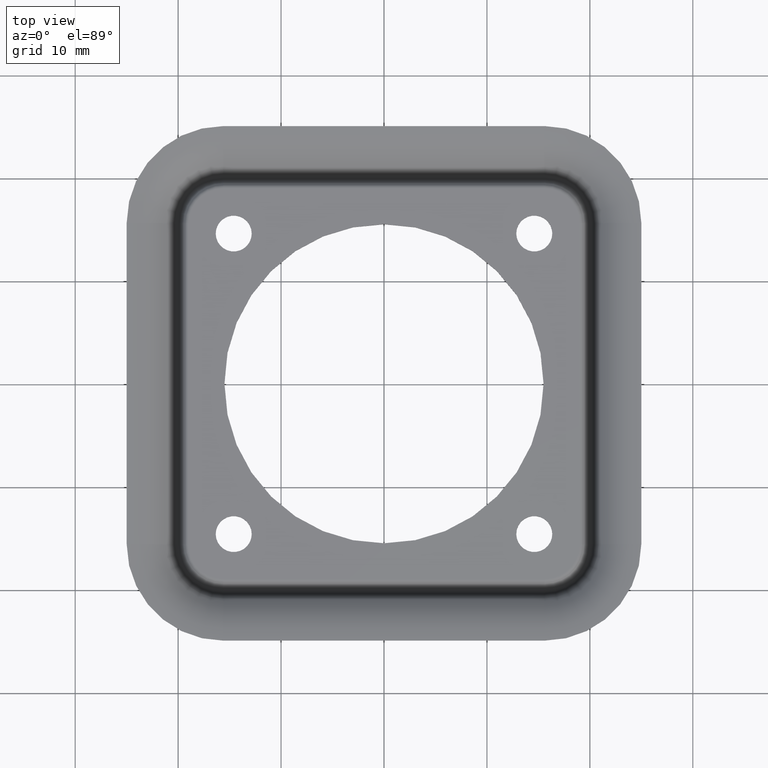
[diagram: clean part render]
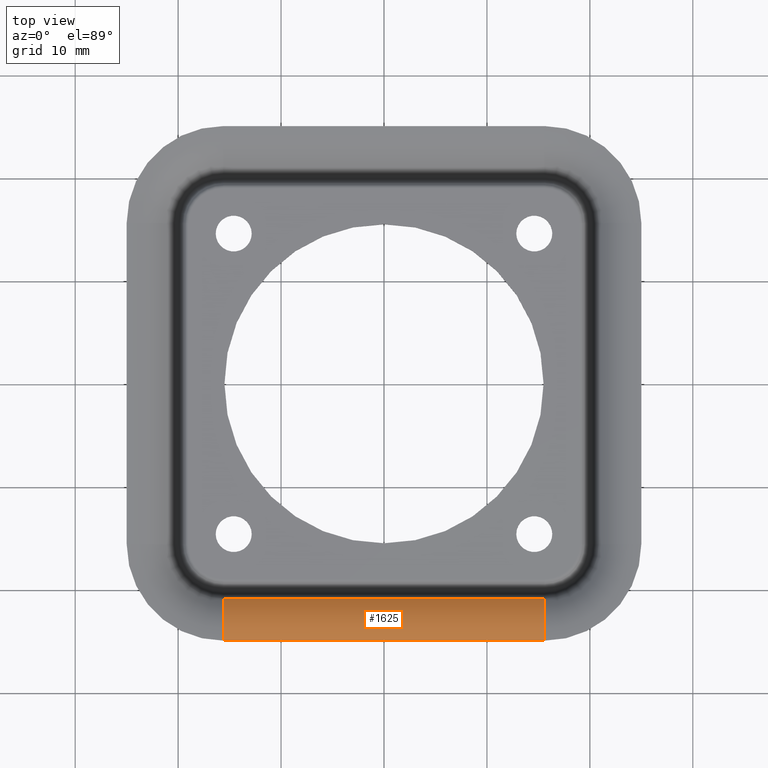
[diagram: same view with one face highlighted and labeled with its STEP entity id]
A machine part, top view. The second image highlights one B-rep face of the part: STEP entity #1625.
In plain terms, the highlighted cylindrical surface (partial cylindrical patch) has radius 5.2858 mm, axis along (1, 0, 0).
Its self-contained STEP definition (entity closure, byte-faithful):
#397=CARTESIAN_POINT('',(-1.56E1,-2.5E1,-2.285771302338E0));
#398=DIRECTION('',(1.E0,0.E0,0.E0));
#399=DIRECTION('',(0.E0,7.833144229636E-1,6.216257031183E-1));
#400=AXIS2_PLACEMENT_3D('',#397,#398,#399);
#402=DIRECTION('',(1.E0,0.E0,0.E0));
#403=VECTOR('',#402,3.12E1);
#404=CARTESIAN_POINT('',(-1.56E1,-2.085957910239E1,1.E0));
#405=LINE('',#404,#403);
#482=DIRECTION('',(1.E0,0.E0,0.E0));
#483=VECTOR('',#482,3.12E1);
#484=CARTESIAN_POINT('',(-1.56E1,-2.5E1,3.E0));
#485=LINE('',#484,#483);
#495=CARTESIAN_POINT('',(1.56E1,-2.5E1,-2.285771302338E0));
#496=DIRECTION('',(1.E0,0.E0,0.E0));
#497=DIRECTION('',(0.E0,7.833144229636E-1,6.216257031183E-1));
#498=AXIS2_PLACEMENT_3D('',#495,#496,#497);
#849=CARTESIAN_POINT('',(-1.56E1,-2.5E1,3.E0));
#851=VERTEX_POINT('',#849);
#853=CARTESIAN_POINT('',(1.56E1,-2.5E1,3.E0));
#855=VERTEX_POINT('',#853);
#898=CARTESIAN_POINT('',(-1.56E1,-2.085957910239E1,1.E0));
#900=VERTEX_POINT('',#898);
#906=CARTESIAN_POINT('',(1.56E1,-2.085957910239E1,1.E0));
#908=VERTEX_POINT('',#906);
#1611=CARTESIAN_POINT('',(-1.56E1,-2.5E1,-2.285771302338E0));
#1612=DIRECTION('',(1.E0,0.E0,0.E0));
#1613=DIRECTION('',(0.E0,1.E0,0.E0));
#1614=AXIS2_PLACEMENT_3D('',#1611,#1612,#1613);
#1615=CYLINDRICAL_SURFACE('',#1614,5.285771302338E0);
#1617=ORIENTED_EDGE('',*,*,#1616,.F.);
#1618=ORIENTED_EDGE('',*,*,#1606,.T.);
#1620=ORIENTED_EDGE('',*,*,#1619,.T.);
#1622=ORIENTED_EDGE('',*,*,#1621,.F.);
#1623=EDGE_LOOP('',(#1617,#1618,#1620,#1622));
#1624=FACE_OUTER_BOUND('',#1623,.F.);
#1625=ADVANCED_FACE('',(#1624),#1615,.T.);
#401=CIRCLE('',#400,5.285771302338E0);
#499=CIRCLE('',#498,5.285771302338E0);
#1606=EDGE_CURVE('',#900,#908,#405,.T.);
#1616=EDGE_CURVE('',#900,#851,#401,.T.);
#1619=EDGE_CURVE('',#908,#855,#499,.T.);
#1621=EDGE_CURVE('',#851,#855,#485,.T.);